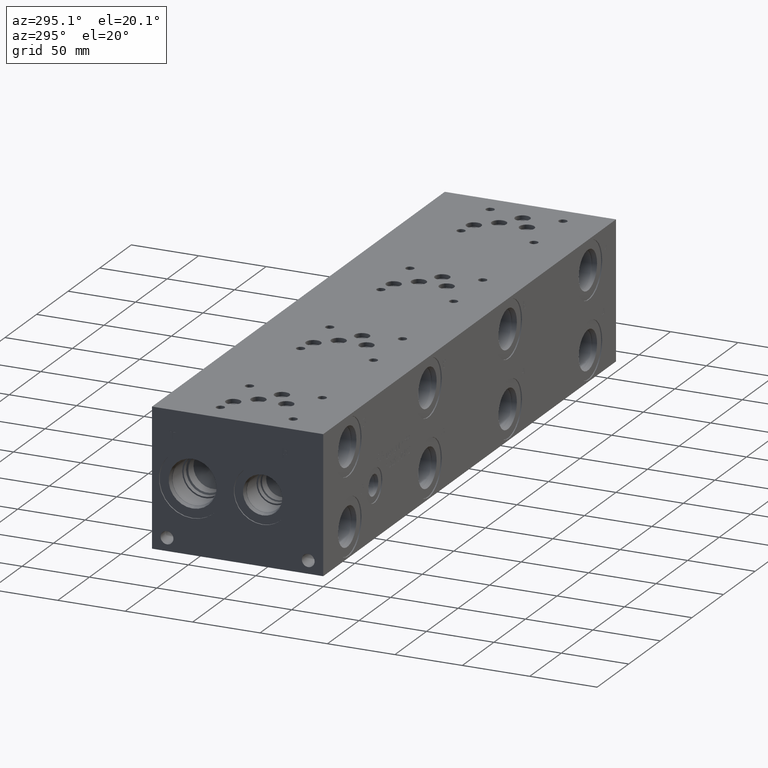
[diagram: clean part render]
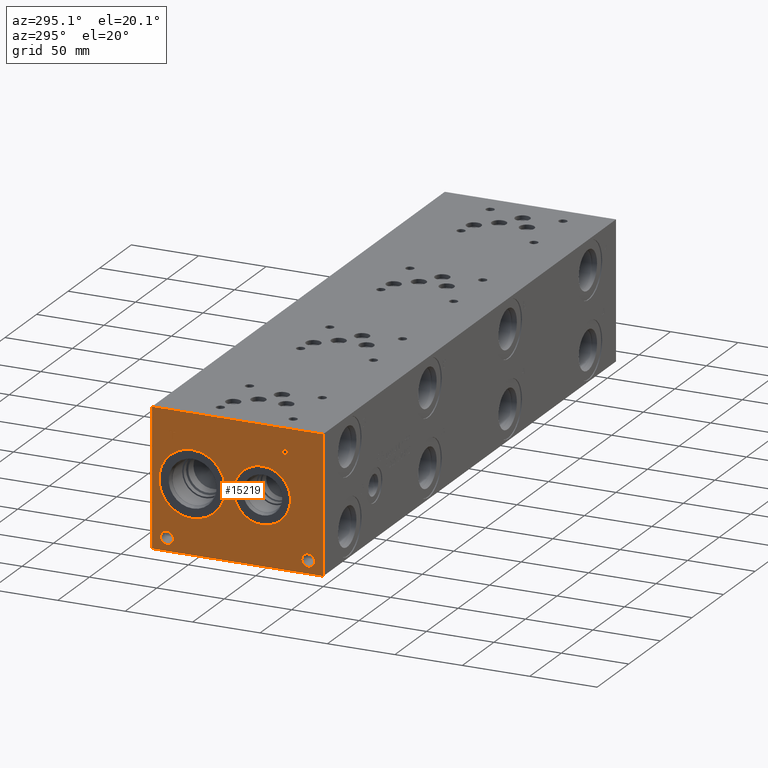
[diagram: same view with one face highlighted and labeled with its STEP entity id]
A machine part, auxiliary view. The second image highlights one B-rep face of the part: STEP entity #15219.
In plain terms, the highlighted planar face has unit normal (-1, 0, 0).
Its self-contained STEP definition (entity closure, byte-faithful):
#428=CIRCLE('',#16045,24.5618);
#429=CIRCLE('',#16046,24.5618);
#430=CIRCLE('',#16047,21.0185);
#431=CIRCLE('',#16048,21.0185);
#432=CIRCLE('',#16049,4.7625);
#433=CIRCLE('',#16050,4.7625);
#434=CIRCLE('',#16051,4.7625);
#435=CIRCLE('',#16052,4.7625);
#1026=B_SPLINE_CURVE_WITH_KNOTS('',2,(#22737,#22738,#22739,#22740),
 .UNSPECIFIED.,.F.,.F.,(3,1,3),(0.,1.,2.),.UNSPECIFIED.);
#1028=B_SPLINE_CURVE_WITH_KNOTS('',2,(#22758,#22759,#22760,#22761),
 .UNSPECIFIED.,.F.,.F.,(3,1,3),(0.,1.,2.),.UNSPECIFIED.);
#1030=B_SPLINE_CURVE_WITH_KNOTS('',2,(#22807,#22808,#22809,#22810),
 .UNSPECIFIED.,.F.,.F.,(3,1,3),(0.,1.,2.),.UNSPECIFIED.);
#1032=B_SPLINE_CURVE_WITH_KNOTS('',2,(#22825,#22826,#22827,#22828),
 .UNSPECIFIED.,.F.,.F.,(3,1,3),(0.,1.,2.),.UNSPECIFIED.);
#1262=FACE_BOUND('',#2358,.T.);
#1263=FACE_BOUND('',#2359,.T.);
#1264=FACE_BOUND('',#2360,.T.);
#1265=FACE_BOUND('',#2361,.T.);
#1266=FACE_BOUND('',#2362,.T.);
#1267=FACE_BOUND('',#2363,.T.);
#1476=FACE_OUTER_BOUND('',#2357,.T.);
#2357=EDGE_LOOP('',(#10638,#10639,#10640,#10641));
#2358=EDGE_LOOP('',(#10642,#10643));
#2359=EDGE_LOOP('',(#10644,#10645));
#2360=EDGE_LOOP('',(#10646,#10647));
#2361=EDGE_LOOP('',(#10648,#10649));
#2362=EDGE_LOOP('',(#10650,#10651,#10652,#10653,#10654,#10655,#10656,#10657));
#2363=EDGE_LOOP('',(#10658,#10659,#10660,#10661,#10662,#10663,#10664,#10665,
#10666));
#3206=LINE('',#20751,#4605);
#3607=LINE('',#22770,#5006);
#3610=LINE('',#22776,#5009);
#3613=LINE('',#22782,#5012);
#3616=LINE('',#22788,#5015);
#3619=LINE('',#22794,#5018);
#3623=LINE('',#22836,#5022);
#3624=LINE('',#22838,#5023);
#3625=LINE('',#22839,#5024);
#3626=LINE('',#22858,#5025);
#3627=LINE('',#22860,#5026);
#3628=LINE('',#22862,#5027);
#3629=LINE('',#22864,#5028);
#3630=LINE('',#22866,#5029);
#3631=LINE('',#22868,#5030);
#3632=LINE('',#22870,#5031);
#3633=LINE('',#22871,#5032);
#4605=VECTOR('',#17120,10.);
#5006=VECTOR('',#17679,10.);
#5009=VECTOR('',#17684,10.);
#5012=VECTOR('',#17689,10.);
#5015=VECTOR('',#17694,10.);
#5018=VECTOR('',#17699,10.);
#5022=VECTOR('',#17707,10.);
#5023=VECTOR('',#17708,10.);
#5024=VECTOR('',#17709,10.);
#5025=VECTOR('',#17726,10.);
#5026=VECTOR('',#17727,10.);
#5027=VECTOR('',#17728,10.);
#5028=VECTOR('',#17729,10.);
#5029=VECTOR('',#17730,10.);
#5030=VECTOR('',#17731,10.);
#5031=VECTOR('',#17732,10.);
#5032=VECTOR('',#17733,10.);
#5990=VERTEX_POINT('',#20744);
#5993=VERTEX_POINT('',#20749);
#6502=VERTEX_POINT('',#22735);
#6503=VERTEX_POINT('',#22736);
#6506=VERTEX_POINT('',#22757);
#6508=VERTEX_POINT('',#22769);
#6510=VERTEX_POINT('',#22775);
#6512=VERTEX_POINT('',#22781);
#6514=VERTEX_POINT('',#22787);
#6516=VERTEX_POINT('',#22793);
#6518=VERTEX_POINT('',#22806);
#6520=VERTEX_POINT('',#22835);
#6521=VERTEX_POINT('',#22837);
#6522=VERTEX_POINT('',#22840);
#6523=VERTEX_POINT('',#22841);
#6524=VERTEX_POINT('',#22844);
#6525=VERTEX_POINT('',#22845);
#6526=VERTEX_POINT('',#22848);
#6527=VERTEX_POINT('',#22849);
#6528=VERTEX_POINT('',#22852);
#6529=VERTEX_POINT('',#22853);
#6530=VERTEX_POINT('',#22856);
#6531=VERTEX_POINT('',#22857);
#6532=VERTEX_POINT('',#22859);
#6533=VERTEX_POINT('',#22861);
#6534=VERTEX_POINT('',#22863);
#6535=VERTEX_POINT('',#22865);
#6536=VERTEX_POINT('',#22867);
#6537=VERTEX_POINT('',#22869);
#7535=EDGE_CURVE('',#5990,#5993,#3206,.T.);
#8127=EDGE_CURVE('',#6502,#6503,#1026,.T.);
#8131=EDGE_CURVE('',#6506,#6502,#1028,.T.);
#8134=EDGE_CURVE('',#6508,#6506,#3607,.T.);
#8137=EDGE_CURVE('',#6510,#6508,#3610,.T.);
#8140=EDGE_CURVE('',#6512,#6510,#3613,.T.);
#8143=EDGE_CURVE('',#6514,#6512,#3616,.T.);
#8146=EDGE_CURVE('',#6516,#6514,#3619,.T.);
#8149=EDGE_CURVE('',#6518,#6516,#1030,.T.);
#8152=EDGE_CURVE('',#6503,#6518,#1032,.T.);
#8154=EDGE_CURVE('',#6520,#5990,#3623,.T.);
#8155=EDGE_CURVE('',#6521,#5993,#3624,.T.);
#8156=EDGE_CURVE('',#6520,#6521,#3625,.T.);
#8157=EDGE_CURVE('',#6522,#6523,#428,.T.);
#8158=EDGE_CURVE('',#6523,#6522,#429,.T.);
#8159=EDGE_CURVE('',#6524,#6525,#430,.T.);
#8160=EDGE_CURVE('',#6525,#6524,#431,.T.);
#8161=EDGE_CURVE('',#6526,#6527,#432,.T.);
#8162=EDGE_CURVE('',#6527,#6526,#433,.T.);
#8163=EDGE_CURVE('',#6528,#6529,#434,.T.);
#8164=EDGE_CURVE('',#6529,#6528,#435,.T.);
#8165=EDGE_CURVE('',#6530,#6531,#3626,.T.);
#8166=EDGE_CURVE('',#6531,#6532,#3627,.T.);
#8167=EDGE_CURVE('',#6532,#6533,#3628,.T.);
#8168=EDGE_CURVE('',#6533,#6534,#3629,.T.);
#8169=EDGE_CURVE('',#6534,#6535,#3630,.T.);
#8170=EDGE_CURVE('',#6535,#6536,#3631,.T.);
#8171=EDGE_CURVE('',#6536,#6537,#3632,.T.);
#8172=EDGE_CURVE('',#6537,#6530,#3633,.T.);
#10638=ORIENTED_EDGE('',*,*,#8154,.T.);
#10639=ORIENTED_EDGE('',*,*,#7535,.T.);
#10640=ORIENTED_EDGE('',*,*,#8155,.F.);
#10641=ORIENTED_EDGE('',*,*,#8156,.F.);
#10642=ORIENTED_EDGE('',*,*,#8157,.T.);
#10643=ORIENTED_EDGE('',*,*,#8158,.T.);
#10644=ORIENTED_EDGE('',*,*,#8159,.T.);
#10645=ORIENTED_EDGE('',*,*,#8160,.T.);
#10646=ORIENTED_EDGE('',*,*,#8161,.T.);
#10647=ORIENTED_EDGE('',*,*,#8162,.T.);
#10648=ORIENTED_EDGE('',*,*,#8163,.T.);
#10649=ORIENTED_EDGE('',*,*,#8164,.T.);
#10650=ORIENTED_EDGE('',*,*,#8165,.T.);
#10651=ORIENTED_EDGE('',*,*,#8166,.T.);
#10652=ORIENTED_EDGE('',*,*,#8167,.T.);
#10653=ORIENTED_EDGE('',*,*,#8168,.T.);
#10654=ORIENTED_EDGE('',*,*,#8169,.T.);
#10655=ORIENTED_EDGE('',*,*,#8170,.T.);
#10656=ORIENTED_EDGE('',*,*,#8171,.T.);
#10657=ORIENTED_EDGE('',*,*,#8172,.T.);
#10658=ORIENTED_EDGE('',*,*,#8127,.T.);
#10659=ORIENTED_EDGE('',*,*,#8152,.T.);
#10660=ORIENTED_EDGE('',*,*,#8149,.T.);
#10661=ORIENTED_EDGE('',*,*,#8146,.T.);
#10662=ORIENTED_EDGE('',*,*,#8143,.T.);
#10663=ORIENTED_EDGE('',*,*,#8140,.T.);
#10664=ORIENTED_EDGE('',*,*,#8137,.T.);
#10665=ORIENTED_EDGE('',*,*,#8134,.T.);
#10666=ORIENTED_EDGE('',*,*,#8131,.T.);
#14191=PLANE('',#16044);
#15219=ADVANCED_FACE('',(#1476,#1262,#1263,#1264,#1265,#1266,#1267),#14191,
 .T.);
#16044=AXIS2_PLACEMENT_3D('',#22834,#17705,#17706);
#16045=AXIS2_PLACEMENT_3D('',#22842,#17710,#17711);
#16046=AXIS2_PLACEMENT_3D('',#22843,#17712,#17713);
#16047=AXIS2_PLACEMENT_3D('',#22846,#17714,#17715);
#16048=AXIS2_PLACEMENT_3D('',#22847,#17716,#17717);
#16049=AXIS2_PLACEMENT_3D('',#22850,#17718,#17719);
#16050=AXIS2_PLACEMENT_3D('',#22851,#17720,#17721);
#16051=AXIS2_PLACEMENT_3D('',#22854,#17722,#17723);
#16052=AXIS2_PLACEMENT_3D('',#22855,#17724,#17725);
#17120=DIRECTION('',(0.,0.,1.));
#17679=DIRECTION('',(0.,-1.,0.));
#17684=DIRECTION('',(0.,-2.79741238752512E-15,1.));
#17689=DIRECTION('',(0.,1.,0.));
#17694=DIRECTION('',(0.,1.876090699025E-15,-1.));
#17699=DIRECTION('',(0.,1.,0.));
#17705=DIRECTION('center_axis',(-1.,0.,0.));
#17706=DIRECTION('ref_axis',(0.,-1.,0.));
#17707=DIRECTION('',(0.,-1.,0.));
#17708=DIRECTION('',(0.,-1.,0.));
#17709=DIRECTION('',(0.,0.,1.));
#17710=DIRECTION('center_axis',(1.,0.,0.));
#17711=DIRECTION('ref_axis',(0.,0.,1.));
#17712=DIRECTION('center_axis',(1.,0.,0.));
#17713=DIRECTION('ref_axis',(0.,0.,1.));
#17714=DIRECTION('center_axis',(1.,0.,0.));
#17715=DIRECTION('ref_axis',(0.,0.,1.));
#17716=DIRECTION('center_axis',(1.,0.,0.));
#17717=DIRECTION('ref_axis',(0.,0.,1.));
#17718=DIRECTION('center_axis',(1.,0.,0.));
#17719=DIRECTION('ref_axis',(0.,1.,0.));
#17720=DIRECTION('center_axis',(1.,0.,0.));
#17721=DIRECTION('ref_axis',(0.,1.,0.));
#17722=DIRECTION('center_axis',(1.,0.,0.));
#17723=DIRECTION('ref_axis',(0.,1.,0.));
#17724=DIRECTION('center_axis',(1.,0.,0.));
#17725=DIRECTION('ref_axis',(0.,1.,0.));
#17726=DIRECTION('',(0.,1.,0.));
#17727=DIRECTION('',(0.,-3.17280044688052E-15,1.));
#17728=DIRECTION('',(0.,1.,0.));
#17729=DIRECTION('',(0.,0.,1.));
#17730=DIRECTION('',(0.,-1.,-3.47984565141734E-15));
#17731=DIRECTION('',(0.,0.,-1.));
#17732=DIRECTION('',(0.,1.,8.33818088455555E-15));
#17733=DIRECTION('',(0.,3.17280044688052E-15,-1.));
#20744=CARTESIAN_POINT('',(0.,0.,0.));
#20749=CARTESIAN_POINT('',(0.,0.,101.6));
#20751=CARTESIAN_POINT('',(0.,0.,0.));
#22735=CARTESIAN_POINT('',(0.,27.1509327976406,86.1225181439707));
#22736=CARTESIAN_POINT('',(0.,26.394490345468,84.6044873726039));
#22737=CARTESIAN_POINT('Ctrl Pts',(0.,27.1509327976406,86.1225181439707));
#22738=CARTESIAN_POINT('Ctrl Pts',(0.,26.7958679731514,85.8806623939564));
#22739=CARTESIAN_POINT('Ctrl Pts',(0.,26.394490345468,85.1345116758269));
#22740=CARTESIAN_POINT('Ctrl Pts',(0.,26.394490345468,84.6044873726039));
#22757=CARTESIAN_POINT('',(0.,28.8130478456117,86.5187499046326));
#22758=CARTESIAN_POINT('Ctrl Pts',(0.,28.8130478456117,86.5187499046326));
#22759=CARTESIAN_POINT('Ctrl Pts',(0.,28.2470024732376,86.5187499046326));
#22760=CARTESIAN_POINT('Ctrl Pts',(0.,27.454538951914,86.3334986918556));
#22761=CARTESIAN_POINT('Ctrl Pts',(0.,27.1509327976406,86.1225181439707));
#22769=CARTESIAN_POINT('',(0.,30.4082666223022,86.5187499046326));
#22770=CARTESIAN_POINT('',(0.,78.7041333111511,86.5187499046326));
#22775=CARTESIAN_POINT('',(0.,30.4082666223022,80.16875));
#22776=CARTESIAN_POINT('',(0.,30.4082666223023,40.0843749999999));
#22781=CARTESIAN_POINT('',(0.,29.5643444307627,80.16875));
#22782=CARTESIAN_POINT('',(0.,78.2821722153814,80.16875));
#22787=CARTESIAN_POINT('',(0.,29.5643444307627,82.5358488299279));
#22788=CARTESIAN_POINT('',(0.,29.5643444307628,41.2679244149638));
#22793=CARTESIAN_POINT('',(0.,28.8490689147628,82.5358488299279));
#22794=CARTESIAN_POINT('',(0.,77.9245344573814,82.5358488299279));
#22806=CARTESIAN_POINT('',(0.,26.9502439837989,83.1945198086904));
#22807=CARTESIAN_POINT('Ctrl Pts',(0.,26.9502439837989,83.1945198086904));
#22808=CARTESIAN_POINT('Ctrl Pts',(0.,27.2795794731802,82.8703301863307));
#22809=CARTESIAN_POINT('Ctrl Pts',(0.,28.1698144679139,82.5358488299279));
#22810=CARTESIAN_POINT('Ctrl Pts',(0.,28.8490689147628,82.5358488299279));
#22825=CARTESIAN_POINT('Ctrl Pts',(0.,26.394490345468,84.6044873726039));
#22826=CARTESIAN_POINT('Ctrl Pts',(0.,26.394490345468,84.1928180108774));
#22827=CARTESIAN_POINT('Ctrl Pts',(0.,26.6878047656982,83.4518131597695));
#22828=CARTESIAN_POINT('Ctrl Pts',(0.,26.9502439837989,83.1945198086904));
#22834=CARTESIAN_POINT('Origin',(0.,127.,0.));
#22835=CARTESIAN_POINT('',(0.,127.,0.));
#22836=CARTESIAN_POINT('',(0.,127.,0.));
#22837=CARTESIAN_POINT('',(0.,127.,101.6));
#22838=CARTESIAN_POINT('',(0.,127.,101.6));
#22839=CARTESIAN_POINT('',(0.,127.,0.));
#22840=CARTESIAN_POINT('',(0.,97.2566,75.3618));
#22841=CARTESIAN_POINT('',(6.93889390390723E-17,97.2566,26.2382));
#22842=CARTESIAN_POINT('Origin',(0.,97.2566,50.8));
#22843=CARTESIAN_POINT('Origin',(0.,97.2566,50.8));
#22844=CARTESIAN_POINT('',(0.,45.2882,71.8185));
#22845=CARTESIAN_POINT('',(0.,45.2882,29.7815));
#22846=CARTESIAN_POINT('Origin',(0.,45.2882,50.8));
#22847=CARTESIAN_POINT('Origin',(0.,45.2882,50.8));
#22848=CARTESIAN_POINT('',(0.,15.8877,9.52500000000001));
#22849=CARTESIAN_POINT('',(0.,6.3627,9.52500000000001));
#22850=CARTESIAN_POINT('Origin',(0.,11.1252,9.52500000000001));
#22851=CARTESIAN_POINT('Origin',(0.,11.1252,9.52500000000001));
#22852=CARTESIAN_POINT('',(0.,120.6373,9.52500000000001));
#22853=CARTESIAN_POINT('',(0.,111.1123,9.52500000000001));
#22854=CARTESIAN_POINT('Origin',(0.,115.8748,9.52500000000001));
#22855=CARTESIAN_POINT('Origin',(0.,115.8748,9.52500000000001));
#22856=CARTESIAN_POINT('',(0.,111.330834728547,80.16875));
#22857=CARTESIAN_POINT('',(0.,112.174756920086,80.16875));
#22858=CARTESIAN_POINT('',(0.,119.165417364273,80.16875));
#22859=CARTESIAN_POINT('',(0.,112.174756920086,85.7674533194816));
#22860=CARTESIAN_POINT('',(0.,112.174756920087,40.084375));
#22861=CARTESIAN_POINT('',(0.,114.305145867022,85.7674533194816));
#22862=CARTESIAN_POINT('',(0.,119.587378460043,85.7674533194816));
#22863=CARTESIAN_POINT('',(0.,114.305145867022,86.5187499046326));
#22864=CARTESIAN_POINT('',(0.,114.305145867022,42.8837266597408));
#22865=CARTESIAN_POINT('',(0.,109.200445781612,86.5187499046326));
#22866=CARTESIAN_POINT('',(0.,120.652572933511,86.5187499046326));
#22867=CARTESIAN_POINT('',(0.,109.200445781612,85.7674533194815));
#22868=CARTESIAN_POINT('',(0.,109.200445781612,43.2593749523163));
#22869=CARTESIAN_POINT('',(0.,111.330834728547,85.7674533194816));
#22870=CARTESIAN_POINT('',(0.,118.100222890806,85.7674533194816));
#22871=CARTESIAN_POINT('',(0.,111.330834728547,42.8837266597408));